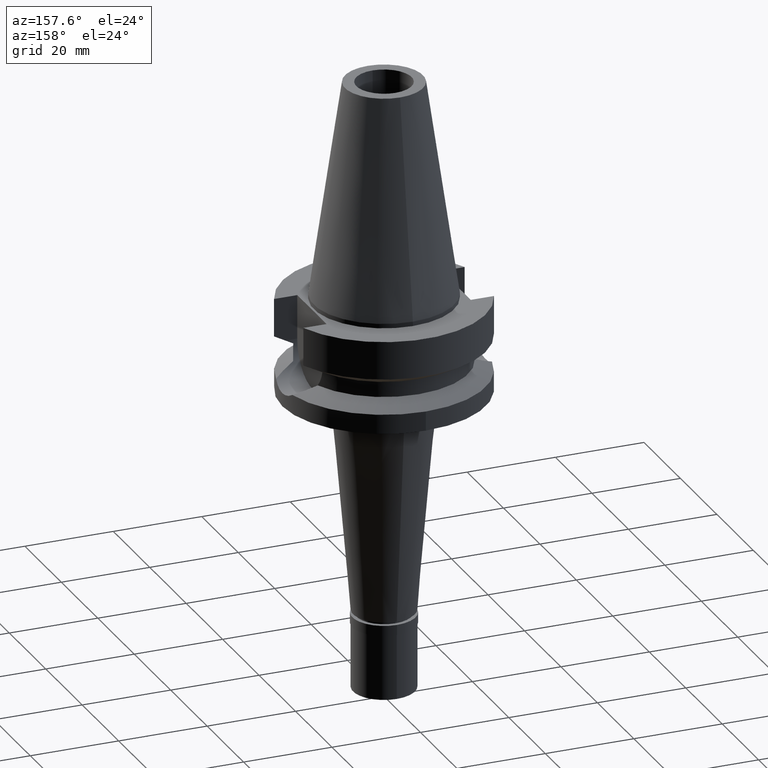
[diagram: clean part render]
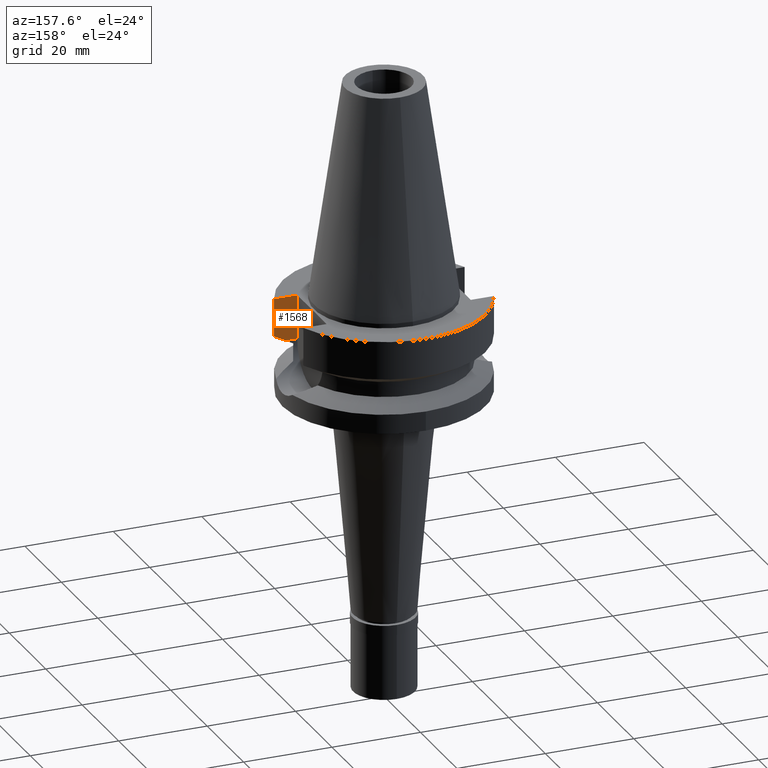
[diagram: same view with one face highlighted and labeled with its STEP entity id]
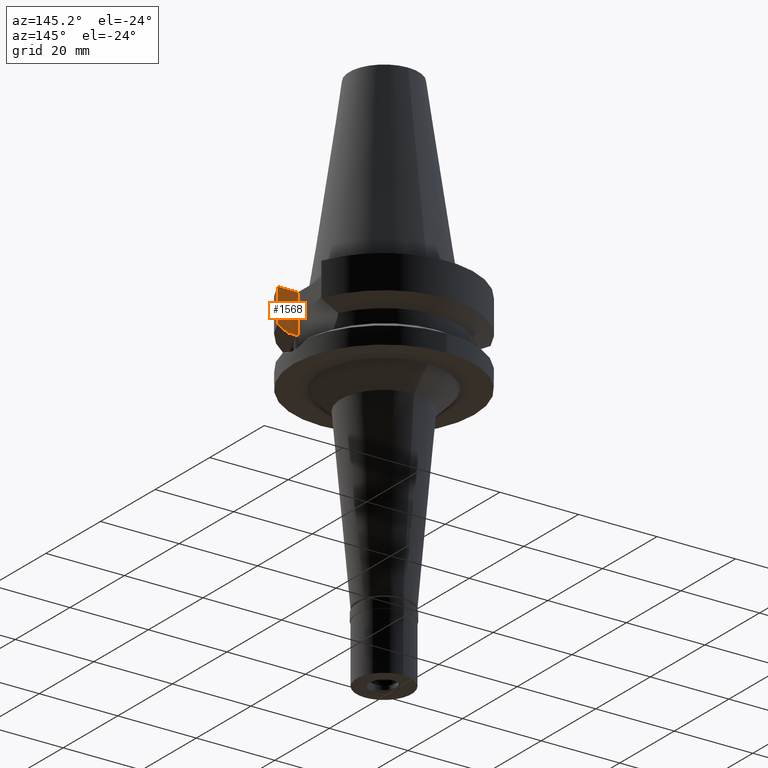
[diagram: same view with one face highlighted and labeled with its STEP entity id]
A machine part, auxiliary view. The second image highlights one B-rep face of the part: STEP entity #1568.
A second angle (auxiliary view) of the same face is appended — the face is thin or edge-on in the first view.
In plain terms, the highlighted planar face has unit normal (0, -1, 0).
Its self-contained STEP definition (entity closure, byte-faithful):
#20 = EDGE_CURVE ( 'NONE', #758, #860, #2939, .T. ) ;
#130 = DIRECTION ( 'NONE',  ( -9.134800745262689569E-08, -2.444862503416914398E-07, -0.9999999999999659162 ) ) ;
#161 = CARTESIAN_POINT ( 'NONE',  ( 21.54524309446999908, -8.050000000000000711, -1.000000000000000000 ) ) ;
#189 = LINE ( 'NONE', #161, #1877 ) ;
#212 = EDGE_CURVE ( 'NONE', #758, #2755, #2891, .T. ) ;
#220 = DIRECTION ( 'NONE',  ( -0.9999999999998816502, 4.790775581495907912E-07, -8.420253777260848103E-08 ) ) ;
#292 = VERTEX_POINT ( 'NONE', #1078 ) ;
#490 = VECTOR ( 'NONE', #1999, 1000.000000000000000 ) ;
#635 = AXIS2_PLACEMENT_3D ( 'NONE', #2581, #1623, #2104 ) ;
#684 = VERTEX_POINT ( 'NONE', #1814 ) ;
#691 = EDGE_CURVE ( 'NONE', #860, #684, #1093, .T. ) ;
#710 = ORIENTED_EDGE ( 'NONE', *, *, #2704, .T. ) ;
#758 = VERTEX_POINT ( 'NONE', #2782 ) ;
#785 = PLANE ( 'NONE',  #635 ) ;
#855 = DIRECTION ( 'NONE',  ( 1.000000000000000000, -9.347030801892000173E-14, 0.0000000000000000000 ) ) ;
#859 = CARTESIAN_POINT ( 'NONE',  ( 18.96736186693999926, -8.050001277873001015, -10.94999977540000025 ) ) ;
#860 = VERTEX_POINT ( 'NONE', #1039 ) ;
#1039 = CARTESIAN_POINT ( 'NONE',  ( 16.29999999999999716, -8.050000000000000711, -10.94999999999999929 ) ) ;
#1078 = CARTESIAN_POINT ( 'NONE',  ( 21.54524309446999908, -8.050000000000000711, -1.000000000000000000 ) ) ;
#1088 = LINE ( 'NONE', #2245, #1817 ) ;
#1093 = LINE ( 'NONE', #1769, #490 ) ;
#1291 = CARTESIAN_POINT ( 'NONE',  ( 21.54524309446999908, -8.050000000002000888, -9.567208369710998639 ) ) ;
#1568 = ADVANCED_FACE ( 'NONE', ( #2088 ), #785, .F. ) ;
#1592 = ORIENTED_EDGE ( 'NONE', *, *, #2315, .T. ) ;
#1623 = DIRECTION ( 'NONE',  ( 0.0000000000000000000, -1.000000000000000000, 0.0000000000000000000 ) ) ;
#1636 = CARTESIAN_POINT ( 'NONE',  ( 21.54524309446999908, -8.050000000002000888, -9.567208369710998639 ) ) ;
#1755 = VECTOR ( 'NONE', #220, 1000.000000000000114 ) ;
#1766 = CARTESIAN_POINT ( 'NONE',  ( 19.78176446227738339, -8.050001299918164932, -10.51717305795229151 ) ) ;
#1769 = CARTESIAN_POINT ( 'NONE',  ( 16.29999999999999716, -8.050000000000000711, -10.94999999999999929 ) ) ;
#1814 = CARTESIAN_POINT ( 'NONE',  ( 16.29999999999999716, -8.050000000000000711, -1.000000000000000000 ) ) ;
#1817 = VECTOR ( 'NONE', #855, 1000.000000000000000 ) ;
#1877 = VECTOR ( 'NONE', #130, 1000.000000000000114 ) ;
#1882 = CARTESIAN_POINT ( 'NONE',  ( 20.64101735201231591, -8.050004185258069711, -10.05624233374762966 ) ) ;
#1999 = DIRECTION ( 'NONE',  ( 0.0000000000000000000, 0.0000000000000000000, 1.000000000000000000 ) ) ;
#2081 = ORIENTED_EDGE ( 'NONE', *, *, #20, .T. ) ;
#2088 = FACE_OUTER_BOUND ( 'NONE', #2295, .T. ) ;
#2104 = DIRECTION ( 'NONE',  ( 0.0000000000000000000, 0.0000000000000000000, -1.000000000000000000 ) ) ;
#2245 = CARTESIAN_POINT ( 'NONE',  ( 16.29999999999999716, -8.050000000000000711, -1.000000000000000000 ) ) ;
#2295 = EDGE_LOOP ( 'NONE', ( #2081, #2374, #1592, #710, #2637 ) ) ;
#2315 = EDGE_CURVE ( 'NONE', #684, #292, #1088, .T. ) ;
#2374 = ORIENTED_EDGE ( 'NONE', *, *, #691, .T. ) ;
#2581 = CARTESIAN_POINT ( 'NONE',  ( 16.29999999999999716, -8.050000000000000711, -1.000000000000000000 ) ) ;
#2637 = ORIENTED_EDGE ( 'NONE', *, *, #212, .F. ) ;
#2700 = CARTESIAN_POINT ( 'NONE',  ( 18.96736186693999926, -8.050001277873001015, -10.94999977540000025 ) ) ;
#2704 = EDGE_CURVE ( 'NONE', #292, #2755, #189, .T. ) ;
#2755 = VERTEX_POINT ( 'NONE', #1291 ) ;
#2782 = CARTESIAN_POINT ( 'NONE',  ( 18.96736186693999926, -8.050001277873001015, -10.94999977540000025 ) ) ;
#2891 = B_SPLINE_CURVE_WITH_KNOTS ( 'NONE', 3,
 ( #859, #1766, #1882, #1636 ),
 .UNSPECIFIED., .F., .F.,
 ( 4, 4 ),
 ( 0.0000000000000000000, 1.000000000000000000 ),
 .UNSPECIFIED. ) ;
#2939 = LINE ( 'NONE', #2700, #1755 ) ;